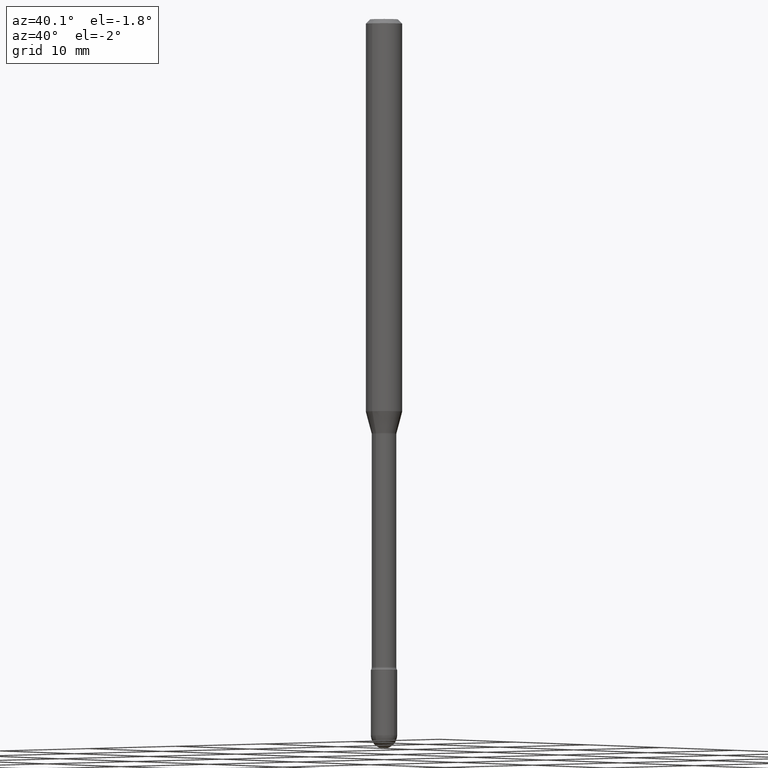
[diagram: clean part render]
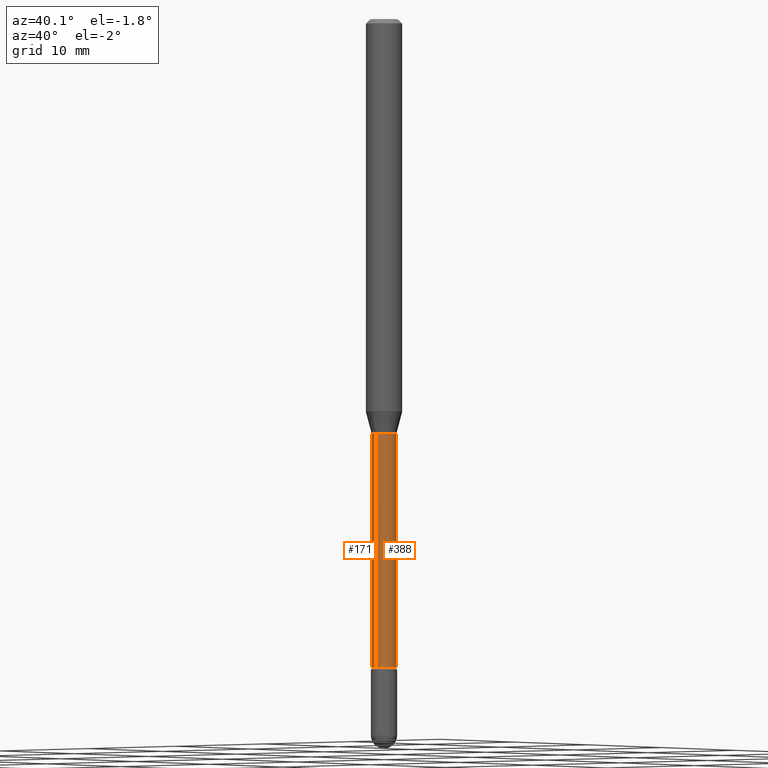
[diagram: same view with one multi-face feature highlighted, each face labeled with its STEP entity id]
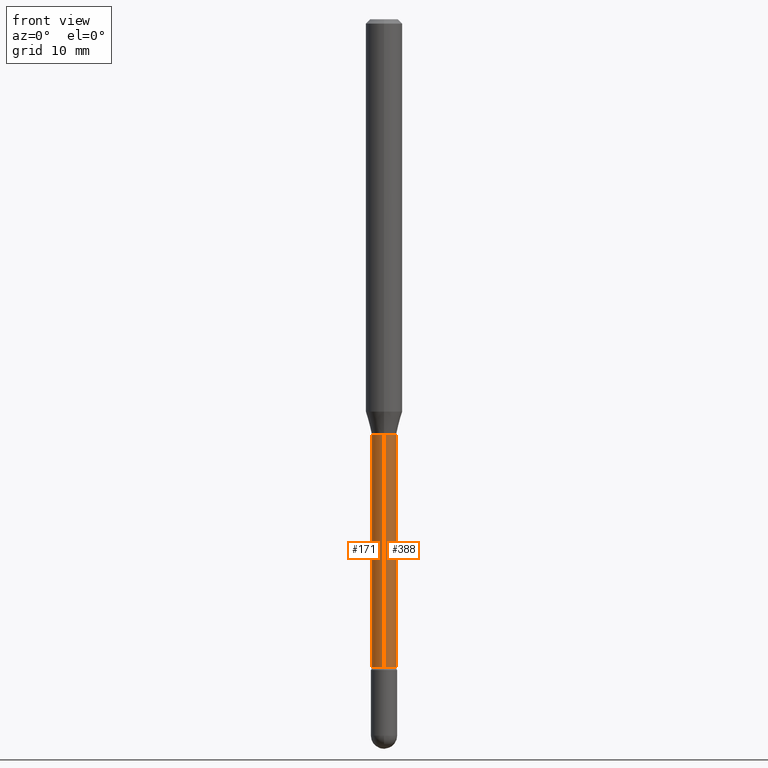
[diagram: same view with one multi-face feature highlighted, each face labeled with its STEP entity id]
A machine part, auxiliary view. The highlighted faces form ONE feature: a constant-radius fillet chain: 2 tangent blend faces with common blend radius 1.0744 mm. The faces share edges in the B-rep.
A second angle (front view) of the same feature is appended — it is thin or edge-on in the first view.
Their STEP definitions:
[1] entity #388 (Cylinder):
#9 = VERTEX_POINT ( 'NONE', #311 ) ;
#17 = EDGE_CURVE ( 'NONE', #344, #522, #564, .T. ) ;
#18 = LINE ( 'NONE', #510, #277 ) ;
#49 = DIRECTION ( 'NONE',  ( -6.982962677686265922E-15, -1.000000000000000000, 6.458269488567979236E-15 ) ) ;
#54 = CARTESIAN_POINT ( 'NONE',  ( 5.432354835314088584E-29, -7.756092088176000346E-15, -2.221414547187247734 ) ) ;
#61 = EDGE_CURVE ( 'NONE', #344, #425, #480, .T. ) ;
#82 = DIRECTION ( 'NONE',  ( -2.445448483351533547E-29, 3.491510442297568953E-15, 1.000000000000000000 ) ) ;
#95 = DIRECTION ( 'NONE',  ( -2.445448483351533547E-29, 3.491510442297568953E-15, 1.000000000000000000 ) ) ;
#107 = DIRECTION ( 'NONE',  ( -2.445448483351533547E-29, 3.491510442297568953E-15, 1.000000000000000000 ) ) ;
#133 = DIRECTION ( 'NONE',  ( -2.445448483351533547E-29, 3.491510442297568953E-15, 1.000000000000000000 ) ) ;
#138 = ORIENTED_EDGE ( 'NONE', *, *, #17, .F. ) ;
#193 = DIRECTION ( 'NONE',  ( -2.445448483351533547E-29, 3.491510442297568953E-15, 1.000000000000000000 ) ) ;
#213 = FACE_OUTER_BOUND ( 'NONE', #407, .T. ) ;
#223 = ORIENTED_EDGE ( 'NONE', *, *, #312, .F. ) ;
#241 = CARTESIAN_POINT ( 'NONE',  ( 3.477366087367496300E-29, -4.964839819113763351E-15, -1.421974787463811118 ) ) ;
#277 = VECTOR ( 'NONE', #107, 39.37007874015748143 ) ;
#297 = EDGE_CURVE ( 'NONE', #425, #9, #18, .T. ) ;
#306 = CYLINDRICAL_SURFACE ( 'NONE', #482, 0.04230000000000005977 ) ;
#309 = CARTESIAN_POINT ( 'NONE',  ( -2.953793212660942943E-16, -0.04230000000000496557, -1.421974787463810896 ) ) ;
#311 = CARTESIAN_POINT ( 'NONE',  ( 3.005595772265769882E-16, 0.04229999999999502908, -1.421974787463811563 ) ) ;
#312 = EDGE_CURVE ( 'NONE', #522, #9, #403, .T. ) ;
#344 = VERTEX_POINT ( 'NONE', #377 ) ;
#349 = DIRECTION ( 'NONE',  ( -6.982962677686266711E-15, -1.000000000000000000, 3.491510442297569742E-15 ) ) ;
#377 = CARTESIAN_POINT ( 'NONE',  ( -2.953793212660755588E-16, -0.04230000000000787991, -2.221414547187247290 ) ) ;
#388 = ADVANCED_FACE ( 'NONE', ( #213 ), #306, .T. ) ;
#397 = CARTESIAN_POINT ( 'NONE',  ( 3.101519041593385169E-16, 0.04229999999999235760, -2.221414547187248179 ) ) ;
#403 = CIRCLE ( 'NONE', #490, 0.04229999999999999732 ) ;
#407 = EDGE_LOOP ( 'NONE', ( #535, #474, #223, #138 ) ) ;
#425 = VERTEX_POINT ( 'NONE', #397 ) ;
#456 = AXIS2_PLACEMENT_3D ( 'NONE', #54, #95, #49 ) ;
#474 = ORIENTED_EDGE ( 'NONE', *, *, #297, .T. ) ;
#480 = CIRCLE ( 'NONE', #456, 0.04230000000000012222 ) ;
#482 = AXIS2_PLACEMENT_3D ( 'NONE', #559, #82, #349 ) ;
#490 = AXIS2_PLACEMENT_3D ( 'NONE', #241, #193, #547 ) ;
#510 = CARTESIAN_POINT ( 'NONE',  ( 3.005595772265227540E-16, 0.04230000000000005977, 3.303825071820586825E-16 ) ) ;
#522 = VERTEX_POINT ( 'NONE', #309 ) ;
#524 = CARTESIAN_POINT ( 'NONE',  ( -2.953793212661294972E-16, -0.04230000000000005977, 6.257642906004334439E-16 ) ) ;
#535 = ORIENTED_EDGE ( 'NONE', *, *, #61, .T. ) ;
#547 = DIRECTION ( 'NONE',  ( -6.982962677686266711E-15, -1.000000000000000000, 6.458269488567998169E-15 ) ) ;
#553 = VECTOR ( 'NONE', #133, 39.37007874015748143 ) ;
#559 = CARTESIAN_POINT ( 'NONE',  ( -1.169113584055446105E-44, 1.669184350826100908E-30, 4.780733988912460139E-16 ) ) ;
#564 = LINE ( 'NONE', #524, #553 ) ;
[2] entity #171 (Cylinder):
#9 = VERTEX_POINT ( 'NONE', #311 ) ;
#17 = EDGE_CURVE ( 'NONE', #344, #522, #564, .T. ) ;
#18 = LINE ( 'NONE', #510, #277 ) ;
#38 = AXIS2_PLACEMENT_3D ( 'NONE', #248, #246, #432 ) ;
#103 = EDGE_CURVE ( 'NONE', #425, #344, #176, .T. ) ;
#107 = DIRECTION ( 'NONE',  ( -2.445448483351533547E-29, 3.491510442297568953E-15, 1.000000000000000000 ) ) ;
#110 = ORIENTED_EDGE ( 'NONE', *, *, #17, .T. ) ;
#111 = DIRECTION ( 'NONE',  ( -2.445448483351533547E-29, 3.491510442297568953E-15, 1.000000000000000000 ) ) ;
#133 = DIRECTION ( 'NONE',  ( -2.445448483351533547E-29, 3.491510442297568953E-15, 1.000000000000000000 ) ) ;
#142 = CIRCLE ( 'NONE', #38, 0.04229999999999999732 ) ;
#171 = ADVANCED_FACE ( 'NONE', ( #249 ), #556, .T. ) ;
#176 = CIRCLE ( 'NONE', #506, 0.04230000000000012222 ) ;
#208 = EDGE_LOOP ( 'NONE', ( #299, #479, #110, #383 ) ) ;
#246 = DIRECTION ( 'NONE',  ( -2.445448483351533547E-29, 3.491510442297568953E-15, 1.000000000000000000 ) ) ;
#247 = DIRECTION ( 'NONE',  ( -6.982962677686266711E-15, -1.000000000000000000, 3.491510442297569742E-15 ) ) ;
#248 = CARTESIAN_POINT ( 'NONE',  ( 3.477366087367496300E-29, -4.964839819113763351E-15, -1.421974787463811118 ) ) ;
#249 = FACE_OUTER_BOUND ( 'NONE', #208, .T. ) ;
#277 = VECTOR ( 'NONE', #107, 39.37007874015748143 ) ;
#297 = EDGE_CURVE ( 'NONE', #425, #9, #18, .T. ) ;
#298 = DIRECTION ( 'NONE',  ( -2.445448483351533547E-29, 3.491510442297568953E-15, 1.000000000000000000 ) ) ;
#299 = ORIENTED_EDGE ( 'NONE', *, *, #297, .F. ) ;
#309 = CARTESIAN_POINT ( 'NONE',  ( -2.953793212660942943E-16, -0.04230000000000496557, -1.421974787463810896 ) ) ;
#311 = CARTESIAN_POINT ( 'NONE',  ( 3.005595772265769882E-16, 0.04229999999999502908, -1.421974787463811563 ) ) ;
#344 = VERTEX_POINT ( 'NONE', #377 ) ;
#373 = EDGE_CURVE ( 'NONE', #9, #522, #142, .T. ) ;
#377 = CARTESIAN_POINT ( 'NONE',  ( -2.953793212660755588E-16, -0.04230000000000787991, -2.221414547187247290 ) ) ;
#383 = ORIENTED_EDGE ( 'NONE', *, *, #373, .F. ) ;
#397 = CARTESIAN_POINT ( 'NONE',  ( 3.101519041593385169E-16, 0.04229999999999235760, -2.221414547187248179 ) ) ;
#425 = VERTEX_POINT ( 'NONE', #397 ) ;
#432 = DIRECTION ( 'NONE',  ( -6.982962677686266711E-15, -1.000000000000000000, 6.458269488567998169E-15 ) ) ;
#433 = CARTESIAN_POINT ( 'NONE',  ( -1.169113584055446105E-44, 1.669184350826100908E-30, 4.780733988912460139E-16 ) ) ;
#455 = CARTESIAN_POINT ( 'NONE',  ( 5.432354835314088584E-29, -7.756092088176000346E-15, -2.221414547187247734 ) ) ;
#470 = AXIS2_PLACEMENT_3D ( 'NONE', #433, #111, #247 ) ;
#476 = DIRECTION ( 'NONE',  ( -6.982962677686265922E-15, -1.000000000000000000, 6.458269488567979236E-15 ) ) ;
#479 = ORIENTED_EDGE ( 'NONE', *, *, #103, .T. ) ;
#506 = AXIS2_PLACEMENT_3D ( 'NONE', #455, #298, #476 ) ;
#510 = CARTESIAN_POINT ( 'NONE',  ( 3.005595772265227540E-16, 0.04230000000000005977, 3.303825071820586825E-16 ) ) ;
#522 = VERTEX_POINT ( 'NONE', #309 ) ;
#524 = CARTESIAN_POINT ( 'NONE',  ( -2.953793212661294972E-16, -0.04230000000000005977, 6.257642906004334439E-16 ) ) ;
#553 = VECTOR ( 'NONE', #133, 39.37007874015748143 ) ;
#556 = CYLINDRICAL_SURFACE ( 'NONE', #470, 0.04230000000000005977 ) ;
#564 = LINE ( 'NONE', #524, #553 ) ;